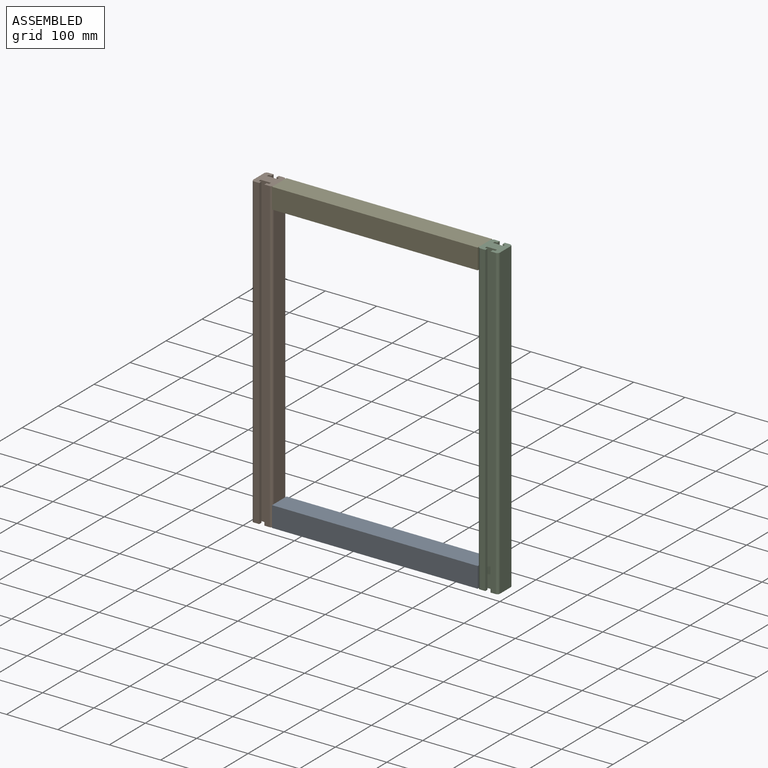
[diagram: assembled view]
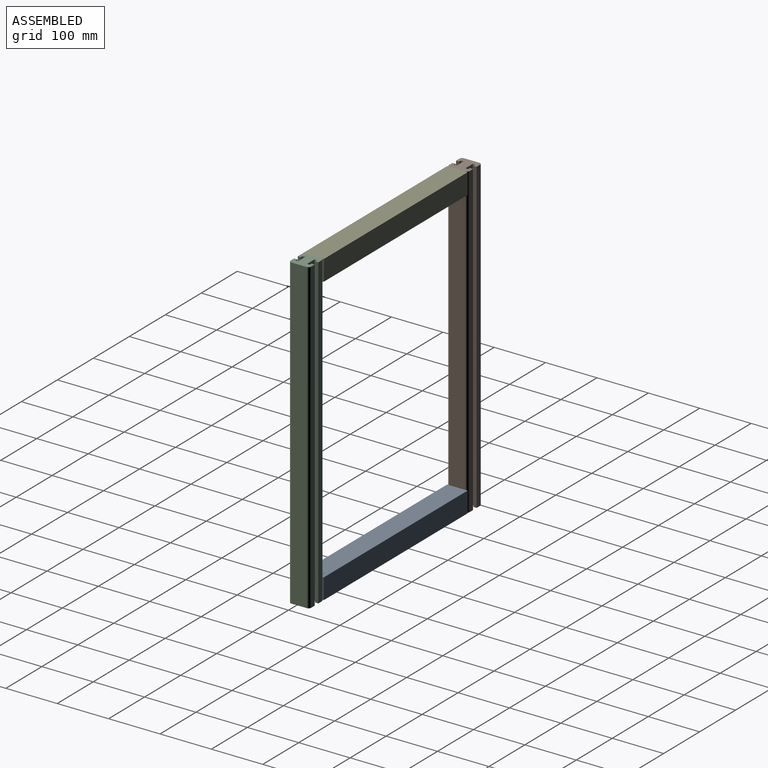
[diagram: assembled view, second angle]
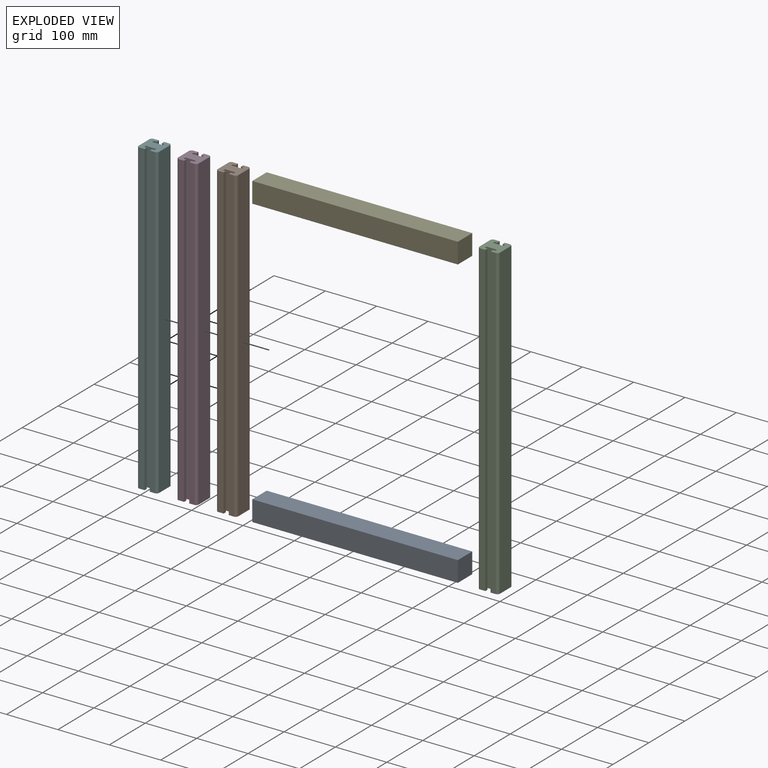
[diagram: exploded view]
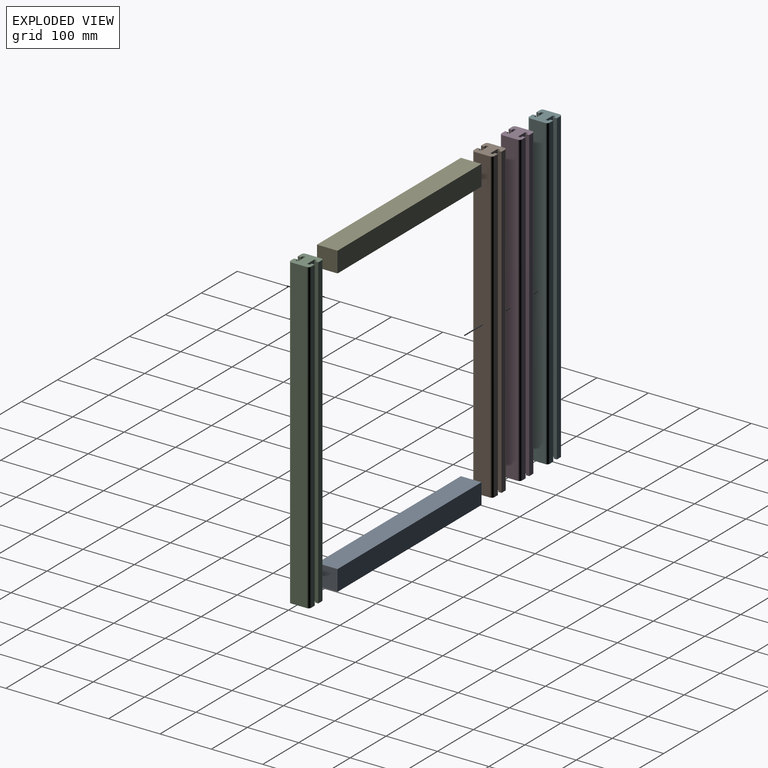
[diagram: exploded view, second angle]
ASSEMBLY  parts=6 mates=3
PART A: 6 faces, bbox 40x40x400 mm
  f0: plane 400x40mm, normal (0,1,0), area 16000mm2, adj f1,f3,f4,f5
  f1: plane 400x40mm, normal (-1,0,0), area 16000mm2, adj f0,f2,f4,f5
  f2: plane 400x40mm, normal (0,-1,0), area 16000mm2, adj f1,f3,f4,f5
  f3: plane 400x40mm, normal (1,0,0), area 16000mm2, adj f0,f2,f4,f5
  f4: plane 40x40mm, normal (0,0,1), area 1600mm2, adj f0,f1,f2,f3
  f5: plane 40x40mm, normal (0,0,-1), area 1600mm2, adj f0,f1,f2,f3
PART B: 26 faces, bbox 40x40x600 mm
  f0: plane 600x10mm, normal (0,1,0), area 6000mm2, adj f2,f3,f15,f23
  f1: plane 600x10mm, normal (0,-1,0), area 6000mm2, adj f2,f3,f8,f22
  f2: plane 40x40mm, normal (0,0,1), area 1253.8mm2, adj f0,f1,f4,f5,f6,f7,f8,f9
  f3: plane 40x40mm, normal (0,0,-1), area 1253.8mm2, adj f0,f1,f4,f5,f6,f7,f8,f9
  f4: plane 600x10mm, normal (0,1,0), area 6000mm2, adj f2,f3,f16,f25
  f5: plane 600x30mm, normal (-1,0,0), area 18000mm2, adj f2,f3,f24,f25
  f6: plane 600x10mm, normal (0,-1,0), area 6000mm2, adj f2,f3,f14,f24
  f7: plane 600x30mm, normal (1,0,0), area 18000mm2, adj f2,f3,f22,f23
  f8: plane 600x6.24mm, normal (-1,0,0), area 3741mm2, adj f1,f2,f3,f9
  f9: plane 600x5mm, normal (0,1,0), area 3000mm2, adj f2,f3,f8,f10
  f10: plane 600x5mm, normal (-1,0,0), area 3000mm2, adj f2,f3,f9,f11
  f11: plane 600x20mm, normal (0,-1,0), area 12000mm2, adj f2,f3,f10,f12
  f12: plane 600x5mm, normal (1,0,0), area 3000mm2, adj f2,f3,f11,f13
  f13: plane 600x5mm, normal (0,1,0), area 3000mm2, adj f2,f3,f12,f14
  f14: plane 600x6.24mm, normal (1,0,0), area 3741mm2, adj f2,f3,f6,f13
  f15: plane 600x6.24mm, normal (-1,0,0), area 3741mm2, adj f0,f2,f3,f21
  f16: plane 600x6.24mm, normal (1,0,0), area 3741mm2, adj f2,f3,f4,f17
  f17: plane 600x5mm, normal (0,-1,0), area 3000mm2, adj f2,f3,f16,f18
  f18: plane 600x5mm, normal (1,0,0), area 3000mm2, adj f2,f3,f17,f19
  f19: plane 600x20mm, normal (0,1,0), area 12000mm2, adj f2,f3,f18,f20
  f20: plane 600x5mm, normal (-1,0,0), area 3000mm2, adj f2,f3,f19,f21
  f21: plane 600x5mm, normal (0,-1,0), area 3000mm2, adj f2,f3,f15,f20
  f22: cylinder r=5mm len=600mm, axis (0,0,1), area 4712.4mm2, adj f1,f2,f3,f7
  f23: cylinder r=5mm len=600mm, axis (0,0,-1), area 4712.4mm2, adj f0,f2,f3,f7
  f24: cylinder r=5mm len=600mm, axis (0,0,-1), area 4712.4mm2, adj f2,f3,f5,f6
  f25: cylinder r=5mm len=600mm, axis (0,0,1), area 4712.4mm2, adj f2,f3,f4,f5
PART C: same geometry as B
PART D: same geometry as B
PART E: same geometry as A
PART F: same geometry as B
PLACE A rot(axis=(-0.58,-0.58,0.58),120deg) t=(157.47,271,191.2)mm
PLACE B at identity
PLACE C rot(axis=(0,0,1),180deg) t=(-85.06,437.48,0)mm
PLACE D at identity
PLACE E rot(axis=(0.71,0,-0.71),180deg) t=(157.47,389.94,527.74)mm
PLACE F at identity
MATE fastened C.f7 <-> E.f5  axis (-1,0,0) through (157.47,218.74,600)mm
MATE fastened E.f4 <-> F.f7  axis (-1,0,0) through (-242.53,218.74,600)mm
MATE fastened A.f5 <-> C.f7  axis (1,0,0) through (157.47,218.74,0)mm
